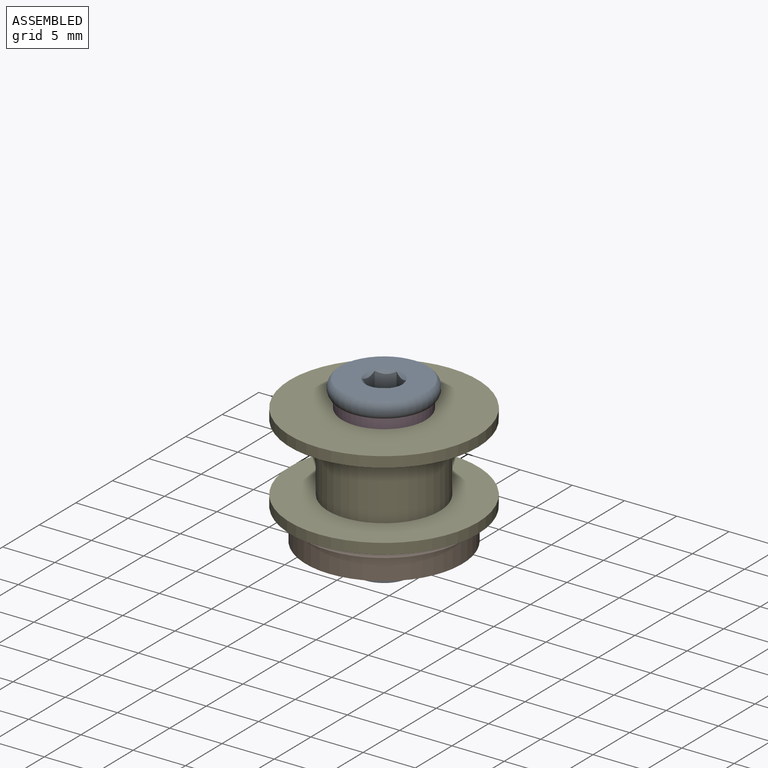
[diagram: assembled view]
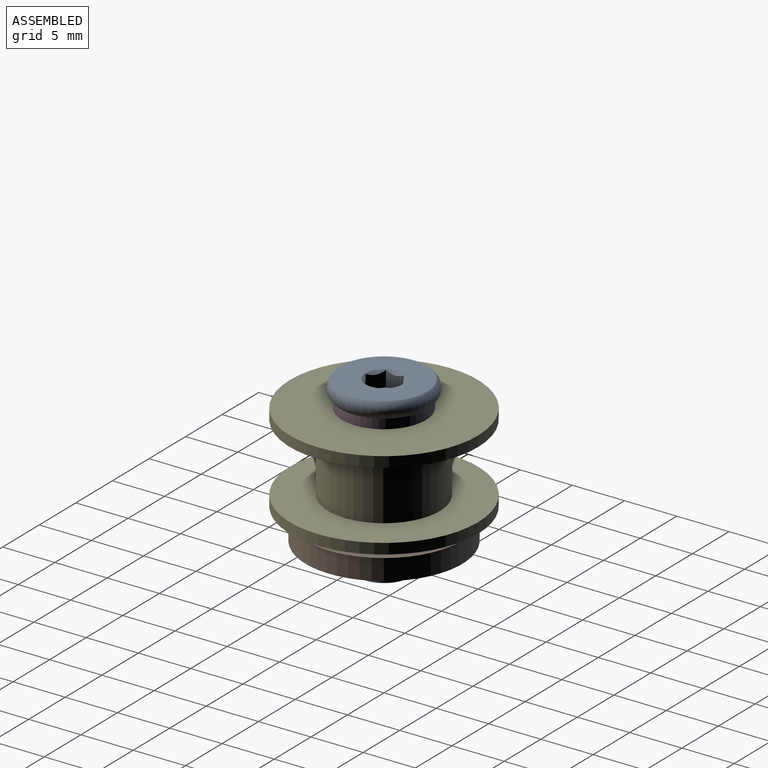
[diagram: assembled view, second angle]
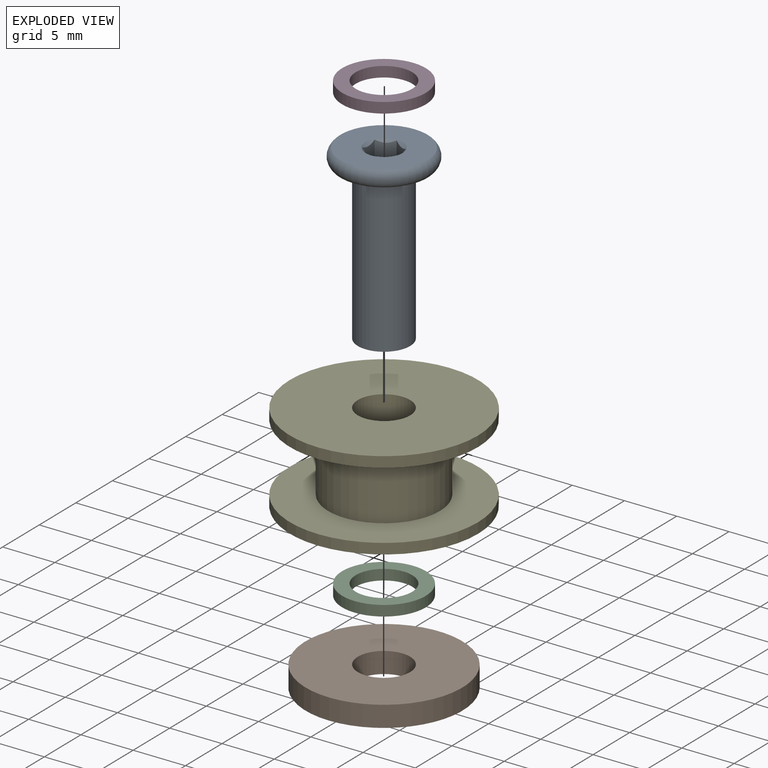
[diagram: exploded view]
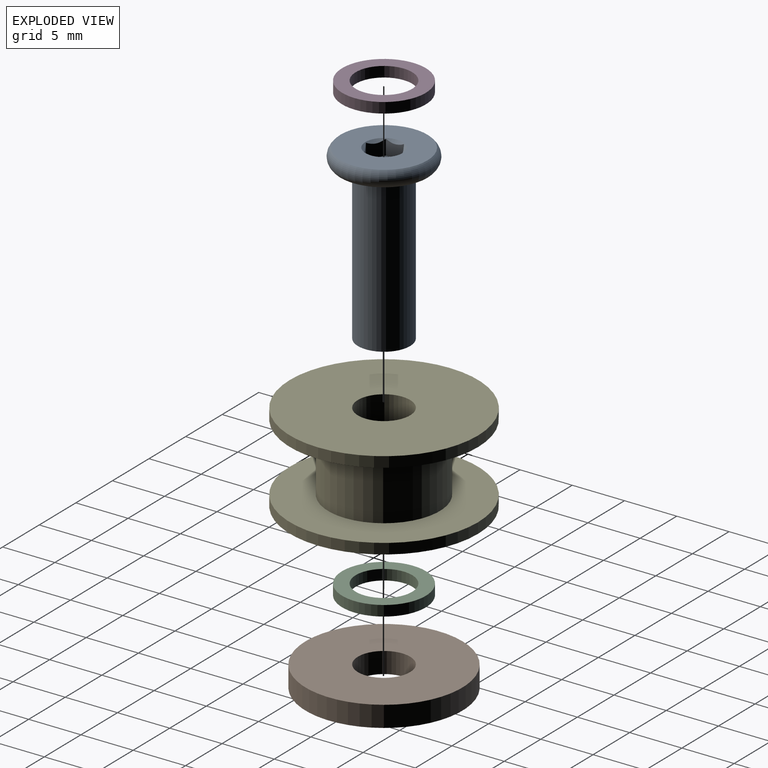
[diagram: exploded view, second angle]
ASSEMBLY  parts=5 mates=4
PART A: 13 faces, bbox 16.8x9.7x9.7 mm
  f0: plane 1.5x1.45mm, normal (0,-0.87,0.5), area 2.2mm2, adj f1,f5,f6,f11
  f1: plane 1.73x1.45mm, normal (0,0,1), area 2.2mm2, adj f0,f2,f6,f11
  f2: plane 1.5x1.45mm, normal (0,0.87,0.5), area 2.2mm2, adj f1,f3,f6,f11
  f3: plane 1.5x1.45mm, normal (0,0.87,-0.5), area 2.2mm2, adj f2,f4,f6,f11
  f4: plane 1.73x1.45mm, normal (0,0,-1), area 2.2mm2, adj f3,f5,f6,f11
  f5: plane 1.5x1.45mm, normal (0,-0.87,-0.5), area 2.2mm2, adj f0,f4,f6,f11
  f6: cone r=1.78mm half-angle=45deg, axis (-1,0,0), area 3.1mm2, adj f0,f1,f2,f3,f4,f5,f9
  f7: torus R=3.5mm, axis (1,0,0), area 46.7mm2, adj f9,f10
  f8: cylinder r=2.5mm len=15mm, axis (1,0,0), area 235.6mm2, adj f10,f12
  f9: plane 8.32x8.32mm, normal (-1,0,0), area 44.4mm2, adj f6,f7
  f10: plane 8.32x8.32mm, normal (1,0,0), area 34.8mm2, adj f7,f8
  f11: plane 3.46x3mm, normal (-1,0,0), area 7.8mm2, adj f0,f1,f2,f3,f4,f5
  f12: plane 5x5mm, normal (1,0,0), area 19.6mm2, adj f8
PART B: 4 faces, bbox 15x15x2 mm
  f0: cylinder r=2.5mm len=5mm, axis (0,0,-1), area 31.4mm2, adj f2,f3
  f1: cylinder r=7.5mm len=15mm, axis (0,0,-1), area 94.2mm2, adj f2,f3
  f2: plane 15x15mm, normal (0,0,1), area 157.1mm2, adj f0,f1
  f3: plane 15x15mm, normal (0,0,-1), area 157.1mm2, adj f0,f1
PART C: 4 faces, bbox 8x8x1 mm
  f0: cylinder r=2.7mm len=5.4mm, axis (0,0,-1), area 17mm2, adj f2,f3
  f1: cylinder r=4mm len=8mm, axis (0,0,-1), area 25.1mm2, adj f2,f3
  f2: plane 8x8mm, normal (0,0,1), area 27.4mm2, adj f0,f1
  f3: plane 8x8mm, normal (0,0,-1), area 27.4mm2, adj f0,f1
PART D: same geometry as C
PART E: 8 faces, bbox 18x18x8.5 mm
  f0: cylinder r=2.5mm len=8.5mm, axis (0,0,1), area 133.5mm2, adj f1,f7
  f1: plane 18x18mm, normal (0,0,1), area 234.8mm2, adj f0,f2
  f2: cylinder r=9mm len=18mm, axis (0,0,1), area 56.5mm2, adj f1,f3
  f3: plane 18x18mm, normal (0,0,-1), area 164.5mm2, adj f2,f4
  f4: cylinder r=5.35mm len=10.7mm, axis (0,0,1), area 218.5mm2, adj f3,f5
  f5: plane 18x18mm, normal (0,0,1), area 164.5mm2, adj f4,f6
  f6: cylinder r=9mm len=18mm, axis (0,0,1), area 56.5mm2, adj f5,f7
  f7: plane 18x18mm, normal (0,0,-1), area 234.8mm2, adj f0,f6
PLACE A rot(axis=(0.71,0,-0.71),180deg) t=(0,0,7)mm
PLACE B rot(axis=(0,0,-1),90deg) t=(0,0,2.5)mm
PLACE C rot(axis=(0,0,-1),90deg) t=(0,0,4.5)mm
PLACE D t=(0,0,14)mm
PLACE E t=(0,0,9.75)mm
MATE fastened C.f1 <-> E.f0  axis (0,0,1) through (0,0,5.5)mm
MATE fastened A.f6 <-> D.f1  axis (0,0,-1) through (0,0,15)mm
MATE fastened E.f0 <-> D.f1  axis (0,0,1) through (0,0,14)mm
MATE fastened B.f1 <-> C.f1  axis (0,0,1) through (0,0,4.5)mm
